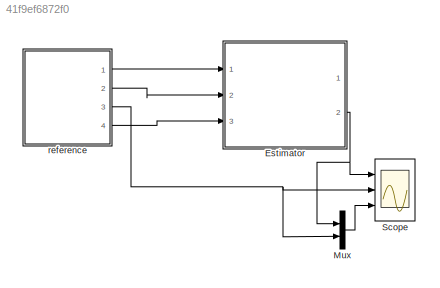
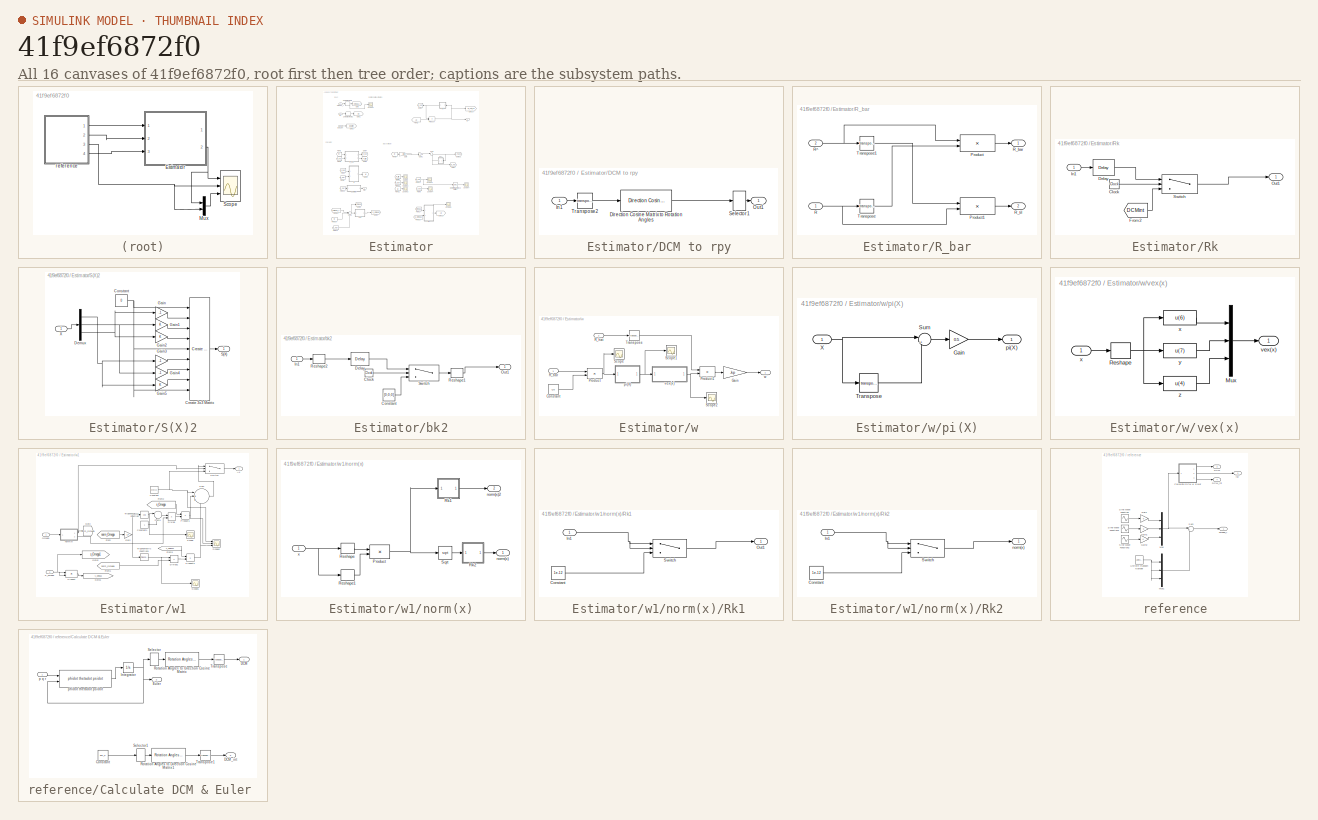
[diagram: thumbnail index - all 16 canvases of the model, root first then tree order]
MODEL slx_41f9ef6872f0
KIND model
CONFIG AbsTol = auto
CONFIG EnableMultiTasking = off
CONFIG FixedStep = t_sim
CONFIG MaxStep = auto
CONFIG MinStep = auto
CONFIG RelTol = 1e-3
CONFIG SampleTimeConstraint = Unconstrained
CONFIG SolverName = ode3
CONFIG StartTime = 0.0
CONFIG StopTime = 40
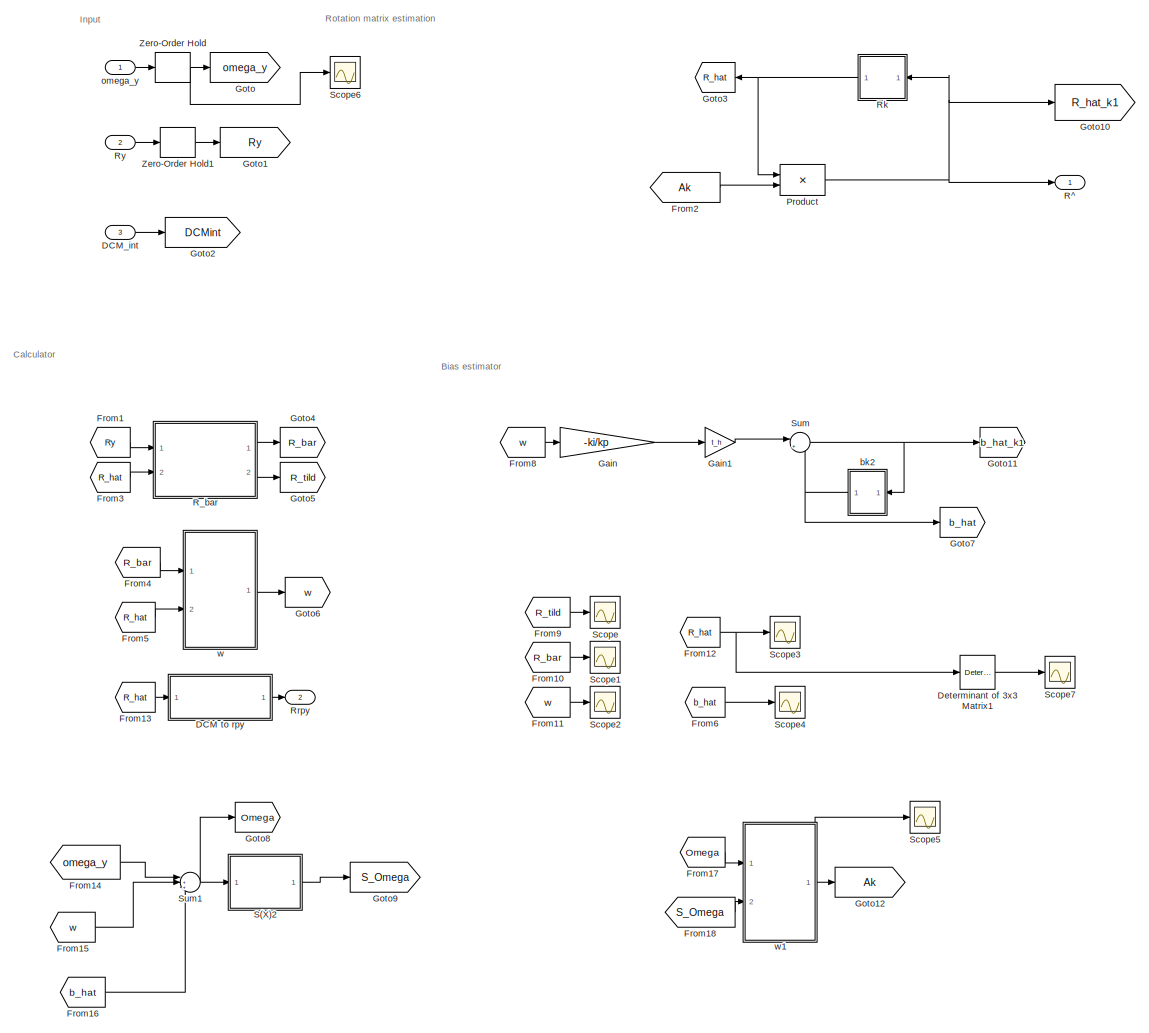
[diagram: Estimator - part 1/1, most of the canvas]
BLOCK [SubSystem] Estimator
  Ports = [3, 2]
  RequestExecContextInheritance = off
BLOCK [SubSystem] Estimator/DCM to rpy
  Ports = [1, 1]
  RequestExecContextInheritance = off
BLOCK [Reference] Estimator/DCM to rpy/Direction Cosine Matrix to Rotation Angles  REF=sharedtransform/Direction Cosine Matrix
to Rotation Angles
  AttributesFormatString = Rotation Order: %<rotationOrder>
  Ports = [1, 1]
  SourceBlock = sharedtransform/Direction Cosine Matrix\nto Rotation Angles
  SourceProductBaseCode = AE,PW,DR,MT,UV,VE
  SourceType = DCM2Ang
BLOCK [Inport] Estimator/DCM to rpy/In1
BLOCK [Outport] Estimator/DCM to rpy/Out1
BLOCK [Selector] Estimator/DCM to rpy/Selector1
  IndexOptions = Index vector (dialog)
  Indices = [3 2 1]
  InputPortWidth = 3
  OutputSizes = 1
  Ports = [1, 1]
BLOCK [Math] Estimator/DCM to rpy/Transpose2
  Operator = transpose
  Ports = [1, 1]
  SignedPower = on
BLOCK [Inport] Estimator/DCM_int
  Port = 3
BLOCK [Reference] Estimator/Determinant of 3x3 Matrix1  REF=sharedutil/Determinant of
3x3 Matrix
  Ports = [1, 1]
  SourceBlock = sharedutil/Determinant of\n3x3 Matrix
  SourceProductBaseCode = AE,PW,DR,MT,UV,VE
  SourceType = Determinant of 3x3 Matrix
BLOCK [From] Estimator/From1
  GotoTag = Ry
BLOCK [From] Estimator/From10
  GotoTag = R_bar
BLOCK [From] Estimator/From11
  GotoTag = w
BLOCK [From] Estimator/From12
  GotoTag = R_hat
BLOCK [From] Estimator/From13
  GotoTag = R_hat
BLOCK [From] Estimator/From14
  GotoTag = omega_y
BLOCK [From] Estimator/From15
  GotoTag = w
BLOCK [From] Estimator/From16
  GotoTag = b_hat
BLOCK [From] Estimator/From17
  GotoTag = Omega
BLOCK [From] Estimator/From18
  GotoTag = S_Omega
BLOCK [From] Estimator/From2
  GotoTag = Ak
BLOCK [From] Estimator/From3
  GotoTag = R_hat
BLOCK [From] Estimator/From4
  GotoTag = R_bar
BLOCK [From] Estimator/From5
  GotoTag = R_hat
BLOCK [From] Estimator/From6
  GotoTag = b_hat
BLOCK [From] Estimator/From8
  GotoTag = w
BLOCK [From] Estimator/From9
  GotoTag = R_tild
BLOCK [Gain] Estimator/Gain
  Gain = -ki/kp
BLOCK [Gain] Estimator/Gain1
  Gain = t_h
BLOCK [Goto] Estimator/Goto
  GotoTag = omega_y
BLOCK [Goto] Estimator/Goto1
  GotoTag = Ry
BLOCK [Goto] Estimator/Goto10
  GotoTag = R_hat_k1
BLOCK [Goto] Estimator/Goto11
  GotoTag = b_hat_k1
BLOCK [Goto] Estimator/Goto12
  GotoTag = Ak
BLOCK [Goto] Estimator/Goto2
  GotoTag = DCMint
  TagVisibility = global
BLOCK [Goto] Estimator/Goto3
  GotoTag = R_hat
  NameLocation = top
BLOCK [Goto] Estimator/Goto4
  GotoTag = R_bar
BLOCK [Goto] Estimator/Goto5
  GotoTag = R_tild
BLOCK [Goto] Estimator/Goto6
  GotoTag = w
BLOCK [Goto] Estimator/Goto7
  GotoTag = b_hat
BLOCK [Goto] Estimator/Goto8
  GotoTag = Omega
BLOCK [Goto] Estimator/Goto9
  GotoTag = S_Omega
BLOCK [Product] Estimator/Product
  Multiplication = Matrix(*)
  Ports = [2, 1]
BLOCK [Outport] Estimator/R^
BLOCK [SubSystem] Estimator/R_bar
  Ports = [2, 2]
  RequestExecContextInheritance = off
BLOCK [Product] Estimator/R_bar/Product
  Multiplication = Matrix(*)
  Ports = [2, 1]
BLOCK [Product] Estimator/R_bar/Product1
  Multiplication = Matrix(*)
  Ports = [2, 1]
BLOCK [Inport] Estimator/R_bar/R
BLOCK [Inport] Estimator/R_bar/R^
  Port = 2
BLOCK [Outport] Estimator/R_bar/R_bar
BLOCK [Outport] Estimator/R_bar/R_til
  Port = 2
BLOCK [Math] Estimator/R_bar/Transpose
  Operator = transpose
  Ports = [1, 1]
  SignedPower = on
BLOCK [Math] Estimator/R_bar/Transpose1
  Operator = transpose
  Ports = [1, 1]
  SignedPower = on
BLOCK [SubSystem] Estimator/Rk
  NameLocation = top
  Ports = [1, 1]
  RequestExecContextInheritance = off
BLOCK [Clock] Estimator/Rk/Clock
BLOCK [Delay] Estimator/Rk/Delay
  DelayLength = 1
  InitialCondition = 0
  InputPortMap = u0
  Ports = [1, 1]
  SampleTime = t_h
BLOCK [From] Estimator/Rk/From2
  GotoTag = DCMint
  TagVisibility = global
BLOCK [Inport] Estimator/Rk/In1
BLOCK [Outport] Estimator/Rk/Out1
BLOCK [Switch] Estimator/Rk/Switch
  Criteria = u2 > Threshold
  InputSameDT = off
  SaturateOnIntegerOverflow = off
  Threshold = t_h
BLOCK [Outport] Estimator/Rrpy
  Port = 2
BLOCK [Inport] Estimator/Ry
  Port = 2
BLOCK [SubSystem] Estimator/S(X)2
  Ports = [1, 1]
  RequestExecContextInheritance = off
BLOCK [Constant] Estimator/S(X)2/Constant
  Value = 0
BLOCK [Reference] Estimator/S(X)2/Create 3x3 Matrix  REF=sharedutil/Create 3x3 Matrix
  Ports = [9, 1]
  SourceBlock = sharedutil/Create 3x3 Matrix
  SourceProductBaseCode = AE,PW,DR,MT,UV,VE
  SourceType = Create 3x3 Matrix
BLOCK [Demux] Estimator/S(X)2/Demux
  Outputs = 3
  Ports = [1, 3]
BLOCK [Gain] Estimator/S(X)2/Gain
  Gain = -1
BLOCK [Gain] Estimator/S(X)2/Gain1
BLOCK [Gain] Estimator/S(X)2/Gain2
BLOCK [Gain] Estimator/S(X)2/Gain3
  Gain = -1
BLOCK [Gain] Estimator/S(X)2/Gain4
  Gain = -1
BLOCK [Gain] Estimator/S(X)2/Gain5
BLOCK [Outport] Estimator/S(X)2/S(X)
BLOCK [Inport] Estimator/S(X)2/X
BLOCK [Scope] Estimator/Scope
  Floating = off
  NumInputPorts = 1
  Ports = [1]
  ScopeSpecificationString = Simulink.scopes.TimeScopeBlockCfg('CurrentConfiguration', extmgr.ConfigurationSet(extmgr.Configuration('Core','General UI',true),extmgr.Configuration('Core','Source UI',true),extmgr.Configuration('Sources','WiredSimulink',true),extmgr.Configuration('Visuals','Time Domain',true,'SerializedDisplays',{struct('MinYLimReal','-0.16232','MaxYLimReal','1.12915','YLabelReal','','MinYLimMag','0.00000','MaxY...<+1480ch>
BLOCK [Scope] Estimator/Scope1
  Floating = off
  NumInputPorts = 1
  Ports = [1]
  ScopeSpecificationString = Simulink.scopes.TimeScopeBlockCfg('CurrentConfiguration', extmgr.ConfigurationSet(extmgr.Configuration('Core','General UI',true),extmgr.Configuration('Core','Source UI',true),extmgr.Configuration('Sources','WiredSimulink',true,'DataLoggingVariableName','ScopeData1'),extmgr.Configuration('Visuals','Time Domain',true,'SerializedDisplays',{struct('MinYLimReal','-1.24998','MaxYLimReal','1.25','YLabelR...<+1525ch>
BLOCK [Scope] Estimator/Scope2
  Floating = off
  NumInputPorts = 1
  Ports = [1]
  ScopeSpecificationString = Simulink.scopes.TimeScopeBlockCfg('CurrentConfiguration', extmgr.ConfigurationSet(extmgr.Configuration('Core','General UI',true),extmgr.Configuration('Core','Source UI',true),extmgr.Configuration('Sources','WiredSimulink',true,'DataLoggingVariableName','ScopeData2'),extmgr.Configuration('Visuals','Time Domain',true,'SerializedDisplays',{struct('MinYLimReal','-0.37267','MaxYLimReal','0.25155','YLab...<+1446ch>
BLOCK [Scope] Estimator/Scope3
  Floating = off
  NumInputPorts = 1
  Ports = [1]
  ScopeSpecificationString = Simulink.scopes.TimeScopeBlockCfg('CurrentConfiguration', extmgr.ConfigurationSet(extmgr.Configuration('Core','General UI',true),extmgr.Configuration('Core','Source UI',true),extmgr.Configuration('Sources','WiredSimulink',true,'DataLoggingVariableName','ScopeData3'),extmgr.Configuration('Visuals','Time Domain',true,'SerializedDisplays',{struct('MinYLimReal','-1.24997','MaxYLimReal','1.25','YLabelR...<+1480ch>
BLOCK [Scope] Estimator/Scope4
  Floating = off
  NumInputPorts = 1
  Ports = [1]
  ScopeSpecificationString = Simulink.scopes.TimeScopeBlockCfg('CurrentConfiguration', extmgr.ConfigurationSet(extmgr.Configuration('Core','General UI',true),extmgr.Configuration('Core','Source UI',true),extmgr.Configuration('Sources','WiredSimulink',true,'DataLoggingVariableName','ScopeData2'),extmgr.Configuration('Visuals','Time Domain',true,'SerializedDisplays',{struct('MinYLimReal','-1.24997','MaxYLimReal','1.25','YLabelR...<+1441ch>
BLOCK [Scope] Estimator/Scope5
  Floating = off
  NumInputPorts = 1
  Ports = [1]
  ScopeSpecificationString = Simulink.scopes.TimeScopeBlockCfg('CurrentConfiguration', extmgr.ConfigurationSet(extmgr.Configuration('Core','General UI',true),extmgr.Configuration('Core','Source UI',true),extmgr.Configuration('Sources','WiredSimulink',true,'DataLoggingVariableName','ScopeData3'),extmgr.Configuration('Visuals','Time Domain',true,'SerializedDisplays',{struct('MinYLimReal','-0.92513','MaxYLimReal','1.2139','YLabe...<+1488ch>
BLOCK [Scope] Estimator/Scope6
  Floating = off
  NumInputPorts = 1
  Ports = [1]
  ScopeSpecificationString = Simulink.scopes.TimeScopeBlockCfg('CurrentConfiguration', extmgr.ConfigurationSet(extmgr.Configuration('Core','General UI',true),extmgr.Configuration('Core','Source UI',true),extmgr.Configuration('Sources','WiredSimulink',true,'DataLoggingVariableName','ScopeData1'),extmgr.Configuration('Visuals','Time Domain',true,'SerializedDisplays',{struct('MinYLimReal','-0.01326','MaxYLimReal','0.01323','YLab...<+1489ch>
BLOCK [Scope] Estimator/Scope7
  Floating = off
  NumInputPorts = 1
  Ports = [1]
  ScopeSpecificationString = Simulink.scopes.TimeScopeBlockCfg('CurrentConfiguration', extmgr.ConfigurationSet(extmgr.Configuration('Core','General UI',true),extmgr.Configuration('Core','Source UI',true),extmgr.Configuration('Sources','WiredSimulink',true,'DataLoggingVariableName','ScopeData10'),extmgr.Configuration('Visuals','Time Domain',true,'SerializedDisplays',{struct('MinYLimReal','0.9999999999999984','MaxYLimReal','1.0...<+1501ch>
BLOCK [Sum] Estimator/Sum
  Inputs = |++
  Ports = [2, 1]
BLOCK [Sum] Estimator/Sum1
  Inputs = |++-
  Ports = [3, 1]
BLOCK [ZeroOrderHold] Estimator/Zero-Order Hold
  SampleTime = t_h
BLOCK [ZeroOrderHold] Estimator/Zero-Order Hold1
  SampleTime = t_h
BLOCK [SubSystem] Estimator/bk2
  NameLocation = top
  Ports = [1, 1]
  RequestExecContextInheritance = off
BLOCK [Clock] Estimator/bk2/Clock
BLOCK [Constant] Estimator/bk2/Constant
  Value = [0;0;0]
BLOCK [Delay] Estimator/bk2/Delay
  DelayLength = 1
  InitialCondition = 0
  InputPortMap = u0
  Ports = [1, 1]
  SampleTime = t_h
BLOCK [Inport] Estimator/bk2/In1
BLOCK [Outport] Estimator/bk2/Out1
BLOCK [Reshape] Estimator/bk2/Reshape1
  OutputDimensionality = Column vector (2-D)
  Ports = [1, 1]
BLOCK [Reshape] Estimator/bk2/Reshape2
  OutputDimensionality = Column vector (2-D)
  Ports = [1, 1]
BLOCK [Switch] Estimator/bk2/Switch
  Criteria = u2 > Threshold
  InputSameDT = off
  SaturateOnIntegerOverflow = off
  Threshold = t_h
BLOCK [Inport] Estimator/omega_y
BLOCK [SubSystem] Estimator/w
  Ports = [2, 1]
  RequestExecContextInheritance = off
BLOCK [Constant] Estimator/w/Constant
  Value = Q0
BLOCK [Gain] Estimator/w/Gain
  Gain = -kp
BLOCK [Product] Estimator/w/Product
  Multiplication = Matrix(*)
  Ports = [2, 1]
BLOCK [Product] Estimator/w/Product1
  Multiplication = Matrix(*)
  Ports = [2, 1]
BLOCK [Inport] Estimator/w/R_bar
BLOCK [Inport] Estimator/w/R_hat
  Port = 2
BLOCK [Scope] Estimator/w/Scope
  Floating = off
  NumInputPorts = 1
  Ports = [1]
  ScopeSpecificationString = Simulink.scopes.TimeScopeBlockCfg('CurrentConfiguration', extmgr.ConfigurationSet(extmgr.Configuration('Core','General UI',true),extmgr.Configuration('Core','Source UI',true),extmgr.Configuration('Sources','WiredSimulink',true,'DataLoggingVariableName','ScopeData3'),extmgr.Configuration('Visuals','Time Domain',true,'SerializedDisplays',{struct('MinYLimReal','-120.29512','MaxYLimReal','120.29512','...<+1507ch>
BLOCK [Scope] Estimator/w/Scope1
  Floating = off
  NumInputPorts = 1
  Ports = [1]
  ScopeSpecificationString = Simulink.scopes.TimeScopeBlockCfg('CurrentConfiguration', extmgr.ConfigurationSet(extmgr.Configuration('Core','General UI',true),extmgr.Configuration('Core','Source UI',true),extmgr.Configuration('Sources','WiredSimulink',true,'DataLoggingVariableName','ScopeData4'),extmgr.Configuration('Visuals','Time Domain',true,'SerializedDisplays',{struct('MinYLimReal','-4.50261','MaxYLimReal','2.65094','YLab...<+1811ch>
BLOCK [Scope] Estimator/w/Scope2
  Floating = off
  NumInputPorts = 1
  Ports = [1]
  ScopeSpecificationString = Simulink.scopes.TimeScopeBlockCfg('CurrentConfiguration', extmgr.ConfigurationSet(extmgr.Configuration('Core','General UI',true),extmgr.Configuration('Core','Source UI',true),extmgr.Configuration('Sources','WiredSimulink',true,'DataLoggingVariableName','ScopeData5'),extmgr.Configuration('Visuals','Time Domain',true,'SerializedDisplays',{struct('MinYLimReal','-3.92467','MaxYLimReal','1.52213','YLab...<+1780ch>
BLOCK [Math] Estimator/w/Transpose
  Operator = transpose
  Ports = [1, 1]
  SignedPower = on
BLOCK [SubSystem] Estimator/w/pi(X)
  Ports = [1, 1]
  RequestExecContextInheritance = off
BLOCK [Gain] Estimator/w/pi(X)/Gain
  Gain = 0.5
BLOCK [Sum] Estimator/w/pi(X)/Sum
  Inputs = |+-
  Ports = [2, 1]
BLOCK [Math] Estimator/w/pi(X)/Transpose
  Operator = transpose
  Ports = [1, 1]
  SignedPower = on
BLOCK [Inport] Estimator/w/pi(X)/X
BLOCK [Outport] Estimator/w/pi(X)/pi(X)
BLOCK [SubSystem] Estimator/w/vex(x)
  Ports = [1, 1]
  RequestExecContextInheritance = off
BLOCK [Mux] Estimator/w/vex(x)/Mux
  DisplayOption = bar
  Inputs = 3
  Ports = [3, 1]
BLOCK [Reshape] Estimator/w/vex(x)/Reshape
  Ports = [1, 1]
BLOCK [Outport] Estimator/w/vex(x)/vex(x)
BLOCK [Inport] Estimator/w/vex(x)/x
BLOCK [Fcn] Estimator/w/vex(x)/x 
  Expr = u(6)
BLOCK [Fcn] Estimator/w/vex(x)/y
  Expr = u(7)
BLOCK [Fcn] Estimator/w/vex(x)/z
  Expr = u(4)
BLOCK [Outport] Estimator/w/w
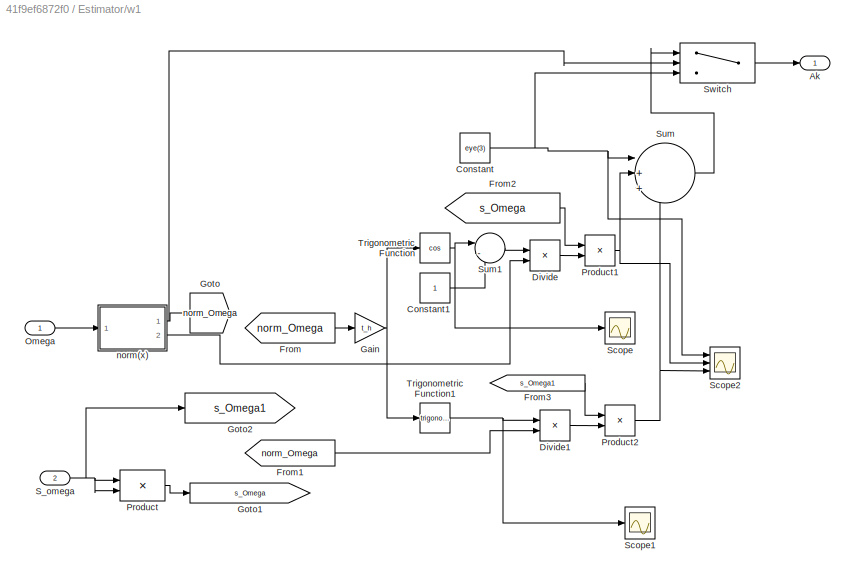
BLOCK [SubSystem] Estimator/w1
  Ports = [2, 1]
  RequestExecContextInheritance = off
BLOCK [Outport] Estimator/w1/Ak
BLOCK [Constant] Estimator/w1/Constant
  Value = eye(3)
BLOCK [Constant] Estimator/w1/Constant1
BLOCK [Product] Estimator/w1/Divide
  Inputs = */
  Ports = [2, 1]
BLOCK [Product] Estimator/w1/Divide1
  Inputs = */
  Ports = [2, 1]
BLOCK [From] Estimator/w1/From
  GotoTag = norm_Omega
BLOCK [From] Estimator/w1/From1
  GotoTag = norm_Omega
BLOCK [From] Estimator/w1/From2
  GotoTag = s_Omega
BLOCK [From] Estimator/w1/From3
  GotoTag = s_Omega1
BLOCK [Gain] Estimator/w1/Gain
  Gain = t_h
BLOCK [Goto] Estimator/w1/Goto
  GotoTag = norm_Omega
BLOCK [Goto] Estimator/w1/Goto1
  GotoTag = s_Omega
BLOCK [Goto] Estimator/w1/Goto2
  GotoTag = s_Omega1
BLOCK [Inport] Estimator/w1/Omega
BLOCK [Product] Estimator/w1/Product
  Multiplication = Matrix(*)
  Ports = [2, 1]
BLOCK [Product] Estimator/w1/Product1
  Ports = [2, 1]
BLOCK [Product] Estimator/w1/Product2
  Ports = [2, 1]
BLOCK [Inport] Estimator/w1/S_omega
  Port = 2
BLOCK [Scope] Estimator/w1/Scope
  Floating = off
  NumInputPorts = 1
  Ports = [1]
  ScopeSpecificationString = Simulink.scopes.TimeScopeBlockCfg('CurrentConfiguration', extmgr.ConfigurationSet(extmgr.Configuration('Core','General UI',true),extmgr.Configuration('Core','Source UI',true),extmgr.Configuration('Sources','WiredSimulink',true,'DataLoggingVariableName','ScopeData7'),extmgr.Configuration('Visuals','Time Domain',true,'SerializedDisplays',{struct('MinYLimReal','-0.42594','MaxYLimReal','1.15844','YLab...<+1381ch>
BLOCK [Scope] Estimator/w1/Scope1
  Floating = off
  NumInputPorts = 1
  Ports = [1]
  ScopeSpecificationString = Simulink.scopes.TimeScopeBlockCfg('CurrentConfiguration', extmgr.ConfigurationSet(extmgr.Configuration('Core','General UI',true),extmgr.Configuration('Core','Source UI',true),extmgr.Configuration('Sources','WiredSimulink',true,'DataLoggingVariableName','ScopeData8'),extmgr.Configuration('Visuals','Time Domain',true,'SerializedDisplays',{struct('MinYLimReal','-0.12044','MaxYLimReal','1.084','YLabel...<+1403ch>
BLOCK [Scope] Estimator/w1/Scope2
  Floating = off
  NumInputPorts = 3
  Ports = [3]
  ScopeSpecificationString = Simulink.scopes.TimeScopeBlockCfg('CurrentConfiguration', extmgr.ConfigurationSet(extmgr.Configuration('Core','General UI',true),extmgr.Configuration('Core','Source UI',true),extmgr.Configuration('Sources','WiredSimulink',true,'DataLoggingVariableName','ScopeData9'),extmgr.Configuration('Visuals','Time Domain',true,'SerializedDisplays',{struct('MinYLimReal','-0.125','MaxYLimReal','1.125','YLabelRe...<+3012ch>
BLOCK [Sum] Estimator/w1/Sum
  Inputs = |+++
  Ports = [3, 1]
BLOCK [Sum] Estimator/w1/Sum1
  Inputs = |-+
  Ports = [2, 1]
BLOCK [Switch] Estimator/w1/Switch
  Criteria = u2 > Threshold
  InputSameDT = off
  SaturateOnIntegerOverflow = off
BLOCK [Trigonometry] Estimator/w1/Trigonometric Function
  Operator = cos
  Ports = [1, 1]
BLOCK [Trigonometry] Estimator/w1/Trigonometric Function1
  Ports = [1, 1]
BLOCK [SubSystem] Estimator/w1/norm(x)
  Ports = [1, 2]
  RequestExecContextInheritance = off
BLOCK [Product] Estimator/w1/norm(x)/Product
  Multiplication = Matrix(*)
  Ports = [2, 1]
BLOCK [Reshape] Estimator/w1/norm(x)/Reshape
  OutputDimensionality = Row vector (2-D)
  Ports = [1, 1]
BLOCK [Reshape] Estimator/w1/norm(x)/Reshape1
  OutputDimensionality = Column vector (2-D)
  Ports = [1, 1]
BLOCK [SubSystem] Estimator/w1/norm(x)/Rk1
  Ports = [1, 1]
  RequestExecContextInheritance = off
BLOCK [Constant] Estimator/w1/norm(x)/Rk1/Constant
  Value = 1e-12
BLOCK [Inport] Estimator/w1/norm(x)/Rk1/In1
BLOCK [Outport] Estimator/w1/norm(x)/Rk1/Out1
BLOCK [Switch] Estimator/w1/norm(x)/Rk1/Switch
  Criteria = u2 > Threshold
  InputSameDT = off
  SaturateOnIntegerOverflow = off
BLOCK [SubSystem] Estimator/w1/norm(x)/Rk2
  Ports = [1, 1]
  RequestExecContextInheritance = off
BLOCK [Constant] Estimator/w1/norm(x)/Rk2/Constant
  Value = 1e-12
BLOCK [Inport] Estimator/w1/norm(x)/Rk2/In1
BLOCK [Switch] Estimator/w1/norm(x)/Rk2/Switch
  Criteria = u2 > Threshold
  InputSameDT = off
  SaturateOnIntegerOverflow = off
BLOCK [Outport] Estimator/w1/norm(x)/Rk2/norm(x)
BLOCK [Sqrt] Estimator/w1/norm(x)/Sqrt
BLOCK [Outport] Estimator/w1/norm(x)/norm(x)
BLOCK [Outport] Estimator/w1/norm(x)/norm(x)2
  Port = 2
BLOCK [Inport] Estimator/w1/norm(x)/x
BLOCK [Mux] Mux
  DisplayOption = bar
  Inputs = 2
  Ports = [2, 1]
BLOCK [Scope] Scope
  Floating = off
  NumInputPorts = 3
  Ports = [3]
  ScopeSpecificationString = Simulink.scopes.TimeScopeBlockCfg('CurrentConfiguration', extmgr.ConfigurationSet(extmgr.Configuration('Core','General UI',true),extmgr.Configuration('Core','Source UI',true),extmgr.Configuration('Sources','WiredSimulink',true,'DataLoggingVariableName','ScopeData1'),extmgr.Configuration('Visuals','Time Domain',true,'SerializedDisplays',{struct('MinYLimReal','-0.27646','MaxYLimReal','2.25631','YLab...<+2858ch>
BLOCK [SubSystem] reference
  Ports = [0, 4]
  RequestExecContextInheritance = off
BLOCK [SubSystem] reference/Calculate DCM & Euler 
  Ports = [1, 3]
  RequestExecContextInheritance = off
BLOCK [Constant] reference/Calculate DCM & Euler /Constant
  Value = eul_0
BLOCK [Outport] reference/Calculate DCM & Euler /DCM
  VectorParamsAs1DForOutWhenUnconnected = off
BLOCK [Outport] reference/Calculate DCM & Euler /DCM_int
  Port = 3
  VectorParamsAs1DForOutWhenUnconnected = off
BLOCK [Outport] reference/Calculate DCM & Euler /Euler
  Port = 2
  VectorParamsAs1DForOutWhenUnconnected = off
BLOCK [Integrator] reference/Calculate DCM & Euler /Integrator
  Ports = [1, 1]
BLOCK [Reference] reference/Calculate DCM & Euler /Rotation Angles to Direction Cosine Matrix  REF=sharedtransform/Rotation Angles to
Direction Cosine Matrix
  AttributesFormatString = Rotation Order: %<rotationOrder>
  Ports = [1, 1]
  SourceBlock = sharedtransform/Rotation Angles to\nDirection Cosine Matrix
  SourceProductBaseCode = AE,PW,DR,MT,UV,VE
  SourceType = Ang2DCM
BLOCK [Reference] reference/Calculate DCM & Euler /Rotation Angles to Direction Cosine Matrix1  REF=sharedtransform/Rotation Angles to
Direction Cosine Matrix
  AttributesFormatString = Rotation Order: %<rotationOrder>
  Ports = [1, 1]
  SourceBlock = sharedtransform/Rotation Angles to\nDirection Cosine Matrix
  SourceProductBaseCode = AE,PW,DR,MT,UV,VE
  SourceType = Ang2DCM
BLOCK [Selector] reference/Calculate DCM & Euler /Selector
  IndexOptions = Index vector (dialog)
  Indices = [3 2 1]
  InputPortWidth = 3
  OutputSizes = 1
  Ports = [1, 1]
BLOCK [Selector] reference/Calculate DCM & Euler /Selector1
  IndexOptions = Index vector (dialog)
  Indices = [3 2 1]
  InputPortWidth = 3
  OutputSizes = 1
  Ports = [1, 1]
BLOCK [Math] reference/Calculate DCM & Euler /Transpose
  Operator = transpose
  Ports = [1, 1]
  SignedPower = on
BLOCK [Math] reference/Calculate DCM & Euler /Transpose1
  Operator = transpose
  Ports = [1, 1]
  SignedPower = on
BLOCK [Inport] reference/Calculate DCM & Euler /p q r 
BLOCK [Reference] reference/Calculate DCM & Euler /phidot thetadot psidot  REF=shared6dofsys/DCM & Euler Angles (Euler)/phidot  (lib defined in slx_91fbb8bad28b)
thetadot
psidot
  Ports = [2, 1]
  SourceBlock = shared6dofsys/DCM & Euler Angles (Euler)/phidot\nthetadot\npsidot
  SourceProductBaseCode = AE,PW,DR,MT,UV,VE
  SourceType = SubSystem
BLOCK [Outport] reference/DCM
  Port = 2
BLOCK [Outport] reference/DCM_int
  Port = 4
BLOCK [Gain] reference/Gain
  Gain = 0
BLOCK [Gain] reference/Gain1
  Gain = 0
BLOCK [Gain] reference/Gain2
BLOCK [Mux] reference/Mux
  DisplayOption = bar
  Inputs = 3
  Ports = [3, 1]
BLOCK [Mux] reference/Mux1
  DisplayOption = bar
  Inputs = 3
  Ports = [3, 1]
BLOCK [Sin] reference/Sine Wave Function
  Ports = [0, 1]
  SampleTime = 0
BLOCK [Sin] reference/Sine Wave Function1
  Amplitude = 0.1
  Frequency = 0.01
  Ports = [0, 1]
  SampleTime = 0
BLOCK [Sin] reference/Sine Wave Function2
  Amplitude = 0.5
  Frequency = 0.5
  Ports = [0, 1]
  SampleTime = 0
BLOCK [Sum] reference/Sum
  Inputs = |++
  Ports = [2, 1]
BLOCK [UniformRandomNumber] reference/Uniform Random Number
  Maximum = 0.05
  Minimum = -0.05
  SampleTime = t_h
BLOCK [Outport] reference/omega_y
BLOCK [Outport] reference/rpy
  Port = 3
ANNOTATION Estimator: Bias estimator
ANNOTATION Estimator: Calculator
ANNOTATION Estimator: Input
ANNOTATION Estimator: Rotation matrix estimation
LINE Estimator/DCM to rpy/Direction Cosine Matrix to Rotation Angles:1 -> Estimator/DCM to rpy/Selector1:1
LINE Estimator/DCM to rpy/In1:1 -> Estimator/DCM to rpy/Transpose2:1
LINE Estimator/DCM to rpy/Selector1:1 -> Estimator/DCM to rpy/Out1:1
LINE Estimator/DCM to rpy/Transpose2:1 -> Estimator/DCM to rpy/Direction Cosine Matrix to Rotation Angles:1
LINE Estimator/DCM to rpy:1 -> Estimator/Rrpy:1
LINE Estimator/DCM_int:1 -> Estimator/Goto2:1
LINE Estimator/Determinant of 3x3 Matrix1:1 -> Estimator/Scope7:1
LINE Estimator/From10:1 -> Estimator/Scope1:1
LINE Estimator/From11:1 -> Estimator/Scope2:1
NET Estimator/From12:1 -> Estimator/Determinant of 3x3 Matrix1:1, Estimator/Scope3:1
LINE Estimator/From13:1 -> Estimator/DCM to rpy:1
LINE Estimator/From14:1 -> Estimator/Sum1:1
LINE Estimator/From15:1 -> Estimator/Sum1:2
LINE Estimator/From16:1 -> Estimator/Sum1:3
LINE Estimator/From17:1 -> Estimator/w1:1
LINE Estimator/From18:1 -> Estimator/w1:2
LINE Estimator/From1:1 -> Estimator/R_bar:1
LINE Estimator/From2:1 -> Estimator/Product:2
LINE Estimator/From3:1 -> Estimator/R_bar:2
LINE Estimator/From4:1 -> Estimator/w:1
LINE Estimator/From5:1 -> Estimator/w:2
LINE Estimator/From6:1 -> Estimator/Scope4:1
LINE Estimator/From8:1 -> Estimator/Gain:1
LINE Estimator/From9:1 -> Estimator/Scope:1
LINE Estimator/Gain1:1 -> Estimator/Sum:1
LINE Estimator/Gain:1 -> Estimator/Gain1:1
NET Estimator/Product:1 -> Estimator/Goto10:1, Estimator/R^:1, Estimator/Rk:1
LINE Estimator/R_bar/Product1:1 -> Estimator/R_bar/R_til:1
LINE Estimator/R_bar/Product:1 -> Estimator/R_bar/R_bar:1
NET Estimator/R_bar/R:1 -> Estimator/R_bar/Product1:2, Estimator/R_bar/Transpose:1
NET Estimator/R_bar/R^:1 -> Estimator/R_bar/Product:1, Estimator/R_bar/Transpose1:1
LINE Estimator/R_bar/Transpose1:1 -> Estimator/R_bar/Product1:1
LINE Estimator/R_bar/Transpose:1 -> Estimator/R_bar/Product:2
LINE Estimator/R_bar:1 -> Estimator/Goto4:1
LINE Estimator/R_bar:2 -> Estimator/Goto5:1
LINE Estimator/Rk/Clock:1 -> Estimator/Rk/Switch:2
LINE Estimator/Rk/Delay:1 -> Estimator/Rk/Switch:1
LINE Estimator/Rk/From2:1 -> Estimator/Rk/Switch:3
LINE Estimator/Rk/In1:1 -> Estimator/Rk/Delay:1
LINE Estimator/Rk/Switch:1 -> Estimator/Rk/Out1:1
NET Estimator/Rk:1 -> Estimator/Goto3:1, Estimator/Product:1
LINE Estimator/Ry:1 -> Estimator/Zero-Order Hold1:1
NET Estimator/S(X)2/Constant:1 -> Estimator/S(X)2/Create 3x3 Matrix:1, Estimator/S(X)2/Create 3x3 Matrix:5, Estimator/S(X)2/Create 3x3 Matrix:9
LINE Estimator/S(X)2/Create 3x3 Matrix:1 -> Estimator/S(X)2/S(X):1
NET Estimator/S(X)2/Demux:1 -> Estimator/S(X)2/Gain3:1, Estimator/S(X)2/Gain5:1
NET Estimator/S(X)2/Demux:2 -> Estimator/S(X)2/Gain1:1, Estimator/S(X)2/Gain4:1
NET Estimator/S(X)2/Demux:3 -> Estimator/S(X)2/Gain2:1, Estimator/S(X)2/Gain:1
LINE Estimator/S(X)2/Gain1:1 -> Estimator/S(X)2/Create 3x3 Matrix:3
LINE Estimator/S(X)2/Gain2:1 -> Estimator/S(X)2/Create 3x3 Matrix:4
LINE Estimator/S(X)2/Gain3:1 -> Estimator/S(X)2/Create 3x3 Matrix:6
LINE Estimator/S(X)2/Gain4:1 -> Estimator/S(X)2/Create 3x3 Matrix:7
LINE Estimator/S(X)2/Gain5:1 -> Estimator/S(X)2/Create 3x3 Matrix:8
LINE Estimator/S(X)2/Gain:1 -> Estimator/S(X)2/Create 3x3 Matrix:2
LINE Estimator/S(X)2/X:1 -> Estimator/S(X)2/Demux:1
LINE Estimator/S(X)2:1 -> Estimator/Goto9:1
NET Estimator/Sum1:1 -> Estimator/Goto8:1, Estimator/S(X)2:1
NET Estimator/Sum:1 -> Estimator/Goto11:1, Estimator/bk2:1
LINE Estimator/Zero-Order Hold1:1 -> Estimator/Goto1:1
NET Estimator/Zero-Order Hold:1 -> Estimator/Goto:1, Estimator/Scope6:1
LINE Estimator/bk2/Clock:1 -> Estimator/bk2/Switch:2
LINE Estimator/bk2/Constant:1 -> Estimator/bk2/Switch:3
LINE Estimator/bk2/Delay:1 -> Estimator/bk2/Switch:1
LINE Estimator/bk2/In1:1 -> Estimator/bk2/Reshape2:1
LINE Estimator/bk2/Reshape1:1 -> Estimator/bk2/Out1:1
LINE Estimator/bk2/Reshape2:1 -> Estimator/bk2/Delay:1
LINE Estimator/bk2/Switch:1 -> Estimator/bk2/Reshape1:1
NET Estimator/bk2:1 -> Estimator/Goto7:1, Estimator/Sum:2
LINE Estimator/omega_y:1 -> Estimator/Zero-Order Hold:1
LINE Estimator/w/Constant:1 -> Estimator/w/Product:2
LINE Estimator/w/Gain:1 -> Estimator/w/w:1
LINE Estimator/w/Product1:1 -> Estimator/w/Gain:1
NET Estimator/w/Product:1 -> Estimator/w/Scope:1, Estimator/w/pi(X):1
LINE Estimator/w/R_bar:1 -> Estimator/w/Product:1
LINE Estimator/w/R_hat:1 -> Estimator/w/Transpose:1
LINE Estimator/w/Transpose:1 -> Estimator/w/Product1:1
LINE Estimator/w/pi(X)/Gain:1 -> Estimator/w/pi(X)/pi(X):1
LINE Estimator/w/pi(X)/Sum:1 -> Estimator/w/pi(X)/Gain:1
LINE Estimator/w/pi(X)/Transpose:1 -> Estimator/w/pi(X)/Sum:2
NET Estimator/w/pi(X)/X:1 -> Estimator/w/pi(X)/Sum:1, Estimator/w/pi(X)/Transpose:1
NET Estimator/w/pi(X):1 -> Estimator/w/Scope1:1, Estimator/w/vex(x):1
LINE Estimator/w/vex(x)/Mux:1 -> Estimator/w/vex(x)/vex(x):1
NET Estimator/w/vex(x)/Reshape:1 -> Estimator/w/vex(x)/x :1, Estimator/w/vex(x)/y:1, Estimator/w/vex(x)/z:1
LINE Estimator/w/vex(x)/x :1 -> Estimator/w/vex(x)/Mux:1
LINE Estimator/w/vex(x)/x:1 -> Estimator/w/vex(x)/Reshape:1
LINE Estimator/w/vex(x)/y:1 -> Estimator/w/vex(x)/Mux:2
LINE Estimator/w/vex(x)/z:1 -> Estimator/w/vex(x)/Mux:3
NET Estimator/w/vex(x):1 -> Estimator/w/Product1:2, Estimator/w/Scope2:1
LINE Estimator/w1/Constant1:1 -> Estimator/w1/Sum1:2
NET Estimator/w1/Constant:1 -> Estimator/w1/Scope2:1, Estimator/w1/Sum:1, Estimator/w1/Switch:3
LINE Estimator/w1/Divide1:1 -> Estimator/w1/Product2:2
LINE Estimator/w1/Divide:1 -> Estimator/w1/Product1:2
LINE Estimator/w1/From1:1 -> Estimator/w1/Divide1:2
LINE Estimator/w1/From2:1 -> Estimator/w1/Product1:1
LINE Estimator/w1/From3:1 -> Estimator/w1/Product2:1
LINE Estimator/w1/From:1 -> Estimator/w1/Gain:1
NET Estimator/w1/Gain:1 -> Estimator/w1/Trigonometric Function1:1, Estimator/w1/Trigonometric Function:1
LINE Estimator/w1/Omega:1 -> Estimator/w1/norm(x):1
NET Estimator/w1/Product1:1 -> Estimator/w1/Scope2:2, Estimator/w1/Sum:2
NET Estimator/w1/Product2:1 -> Estimator/w1/Scope2:3, Estimator/w1/Sum:3
LINE Estimator/w1/Product:1 -> Estimator/w1/Goto1:1
NET Estimator/w1/S_omega:1 -> Estimator/w1/Goto2:1, Estimator/w1/Product:1, Estimator/w1/Product:2
LINE Estimator/w1/Sum1:1 -> Estimator/w1/Divide:1
LINE Estimator/w1/Sum:1 -> Estimator/w1/Switch:1
LINE Estimator/w1/Switch:1 -> Estimator/w1/Ak:1
NET Estimator/w1/Trigonometric Function1:1 -> Estimator/w1/Divide1:1, Estimator/w1/Scope1:1
NET Estimator/w1/Trigonometric Function:1 -> Estimator/w1/Scope:1, Estimator/w1/Sum1:1
NET Estimator/w1/norm(x)/Product:1 -> Estimator/w1/norm(x)/Rk1:1, Estimator/w1/norm(x)/Sqrt:1
LINE Estimator/w1/norm(x)/Reshape1:1 -> Estimator/w1/norm(x)/Product:2
LINE Estimator/w1/norm(x)/Reshape:1 -> Estimator/w1/norm(x)/Product:1
LINE Estimator/w1/norm(x)/Rk1/Constant:1 -> Estimator/w1/norm(x)/Rk1/Switch:3
NET Estimator/w1/norm(x)/Rk1/In1:1 -> Estimator/w1/norm(x)/Rk1/Switch:1, Estimator/w1/norm(x)/Rk1/Switch:2
LINE Estimator/w1/norm(x)/Rk1/Switch:1 -> Estimator/w1/norm(x)/Rk1/Out1:1
LINE Estimator/w1/norm(x)/Rk1:1 -> Estimator/w1/norm(x)/norm(x)2:1
LINE Estimator/w1/norm(x)/Rk2/Constant:1 -> Estimator/w1/norm(x)/Rk2/Switch:3
NET Estimator/w1/norm(x)/Rk2/In1:1 -> Estimator/w1/norm(x)/Rk2/Switch:1, Estimator/w1/norm(x)/Rk2/Switch:2
LINE Estimator/w1/norm(x)/Rk2/Switch:1 -> Estimator/w1/norm(x)/Rk2/norm(x):1
LINE Estimator/w1/norm(x)/Rk2:1 -> Estimator/w1/norm(x)/norm(x):1
LINE Estimator/w1/norm(x)/Sqrt:1 -> Estimator/w1/norm(x)/Rk2:1
NET Estimator/w1/norm(x)/x:1 -> Estimator/w1/norm(x)/Reshape1:1, Estimator/w1/norm(x)/Reshape:1
NET Estimator/w1/norm(x):1 -> Estimator/w1/Goto:1, Estimator/w1/Switch:2
LINE Estimator/w1/norm(x):2 -> Estimator/w1/Divide:2
NET Estimator/w1:1 -> Estimator/Goto12:1, Estimator/Scope5:1
LINE Estimator/w:1 -> Estimator/Goto6:1
NET Estimator:2 -> Mux:1, Scope:1
LINE Mux:1 -> Scope:3
LINE reference/Calculate DCM & Euler /Constant:1 -> reference/Calculate DCM & Euler /Selector1:1
NET reference/Calculate DCM & Euler /Integrator:1 -> reference/Calculate DCM & Euler /Euler:1, reference/Calculate DCM & Euler /Selector:1, reference/Calculate DCM & Euler /phidot thetadot psidot:2
LINE reference/Calculate DCM & Euler /Rotation Angles to Direction Cosine Matrix1:1 -> reference/Calculate DCM & Euler /Transpose1:1
LINE reference/Calculate DCM & Euler /Rotation Angles to Direction Cosine Matrix:1 -> reference/Calculate DCM & Euler /Transpose:1
LINE reference/Calculate DCM & Euler /Selector1:1 -> reference/Calculate DCM & Euler /Rotation Angles to Direction Cosine Matrix1:1
LINE reference/Calculate DCM & Euler /Selector:1 -> reference/Calculate DCM & Euler /Rotation Angles to Direction Cosine Matrix:1
LINE reference/Calculate DCM & Euler /Transpose1:1 -> reference/Calculate DCM & Euler /DCM_int:1
LINE reference/Calculate DCM & Euler /Transpose:1 -> reference/Calculate DCM & Euler /DCM:1
LINE reference/Calculate DCM & Euler /p q r :1 -> reference/Calculate DCM & Euler /phidot thetadot psidot:1
LINE reference/Calculate DCM & Euler /phidot thetadot psidot:1 -> reference/Calculate DCM & Euler /Integrator:1
LINE reference/Calculate DCM & Euler :1 -> reference/DCM:1
LINE reference/Calculate DCM & Euler :2 -> reference/rpy:1
LINE reference/Calculate DCM & Euler :3 -> reference/DCM_int:1
LINE reference/Gain1:1 -> reference/Mux:2
LINE reference/Gain2:1 -> reference/Mux:3
LINE reference/Gain:1 -> reference/Mux:1
LINE reference/Mux1:1 -> reference/Sum:2
NET reference/Mux:1 -> reference/Calculate DCM & Euler :1, reference/Sum:1
LINE reference/Sine Wave Function1:1 -> reference/Gain1:1
LINE reference/Sine Wave Function2:1 -> reference/Gain2:1
LINE reference/Sine Wave Function:1 -> reference/Gain:1
LINE reference/Sum:1 -> reference/omega_y:1
NET reference/Uniform Random Number:1 -> reference/Mux1:1, reference/Mux1:2, reference/Mux1:3
LINE reference:1 -> Estimator:1
LINE reference:2 -> Estimator:2
NET reference:3 -> Mux:2, Scope:2
LINE reference:4 -> Estimator:3
note: NET lines group one-source signal fan-out (src -> all destinations, sorted); 1:1 wires keep LINE
